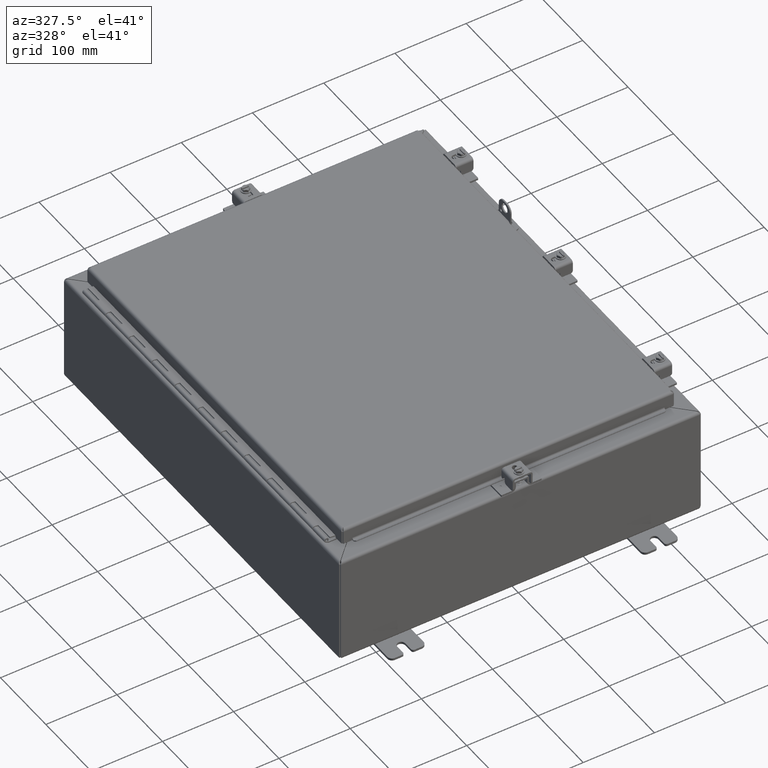
[diagram: clean part render]
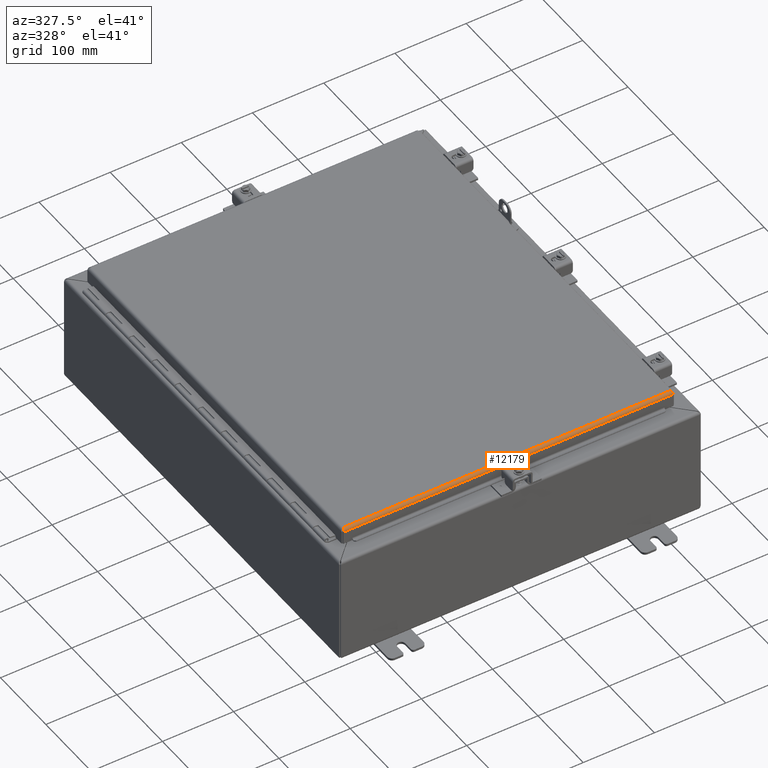
[diagram: same view with one face highlighted and labeled with its STEP entity id]
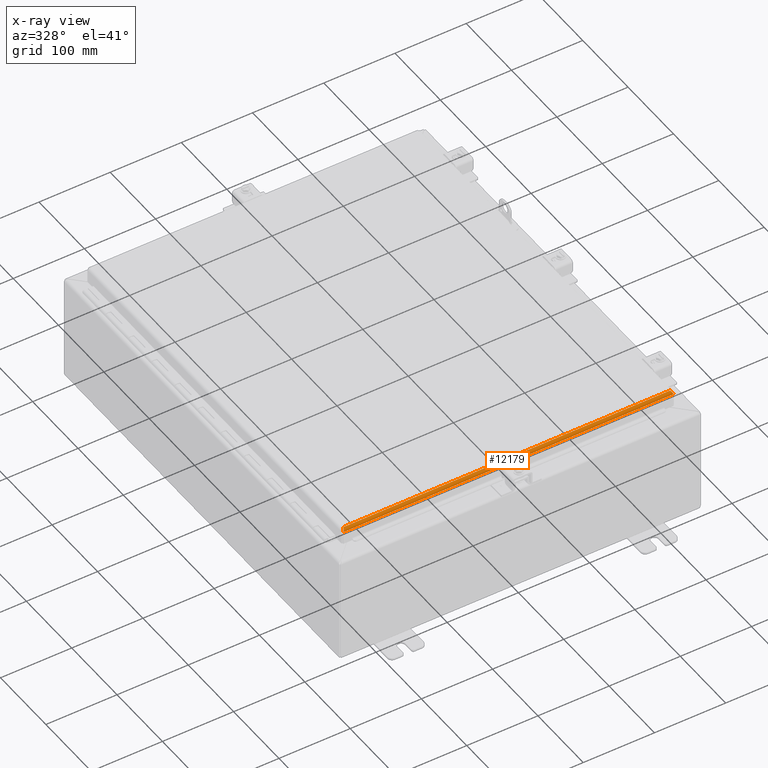
[diagram: x-ray of the same camera — body ghosted, the highlighted face saturated]
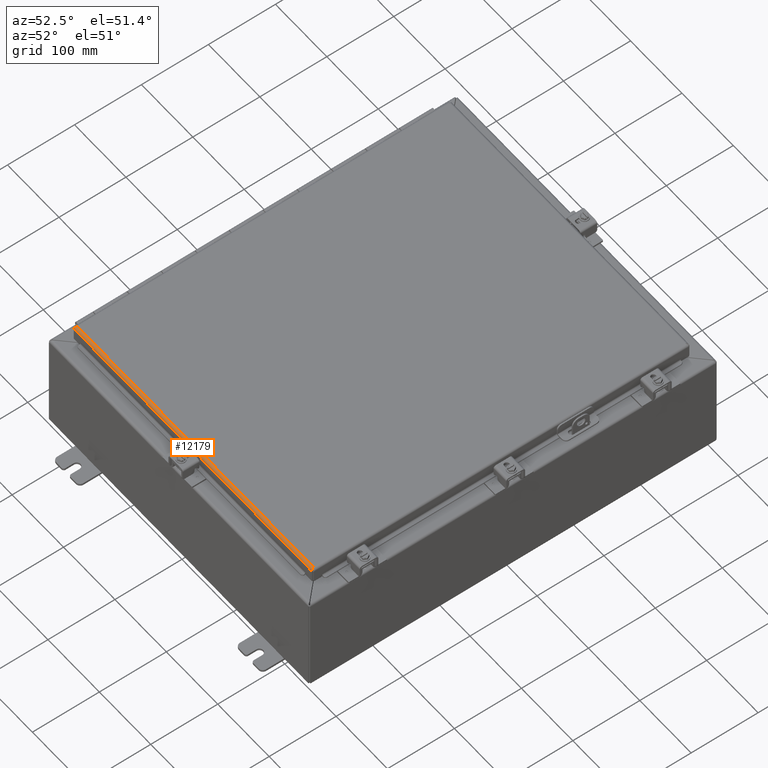
[diagram: same view with one face highlighted and labeled with its STEP entity id]
A machine part, auxiliary view. The second image highlights one B-rep face of the part: STEP entity #12179.
The next image is the same camera in x-ray: the body ghosted, the highlighted face saturated — about 0% of this face is hidden behind the body in this view.
A second angle (auxiliary view) of the same face is appended — the face is thin or edge-on in the first view.
In plain terms, the highlighted cylindrical surface (edge-blend (fillet) strip) has radius 3.8798 mm, axis along (1, 0, -0).
Its self-contained STEP definition (entity closure, byte-faithful):
#497=B_SPLINE_CURVE_WITH_KNOTS('',3,(#20444,#20445,#20446,#20447,#20448,
#20449,#20450),.UNSPECIFIED.,.F.,.F.,(4,3,4),(-0.715532508257306,-0.306656789263516,
0.),.UNSPECIFIED.);
#499=B_SPLINE_CURVE_WITH_KNOTS('',3,(#20483,#20484,#20485,#20486),
 .UNSPECIFIED.,.F.,.F.,(4,4),(-1.,-0.715532508257306),.UNSPECIFIED.);
#500=B_SPLINE_CURVE_WITH_KNOTS('',3,(#20488,#20489,#20490,#20491,#20492,
#20493,#20494),.UNSPECIFIED.,.F.,.F.,(4,3,4),(0.,0.673198425769241,1.5707963267949),
 .UNSPECIFIED.);
#1845=FACE_OUTER_BOUND('',#2553,.T.);
#2553=EDGE_LOOP('',(#9787,#9788,#9789,#9790,#9791));
#3426=LINE('',#20247,#4505);
#3443=LINE('',#20495,#4522);
#4505=VECTOR('',#14832,18.2555857864376);
#4522=VECTOR('',#14871,18.0695);
#5942=VERTEX_POINT('',#20244);
#5943=VERTEX_POINT('',#20246);
#5953=VERTEX_POINT('',#20432);
#5954=VERTEX_POINT('',#20443);
#5955=VERTEX_POINT('',#20487);
#7332=EDGE_CURVE('',#5942,#5943,#3426,.T.);
#7359=EDGE_CURVE('',#5953,#5954,#497,.T.);
#7363=EDGE_CURVE('',#5943,#5953,#499,.T.);
#7364=EDGE_CURVE('',#5955,#5942,#500,.T.);
#7365=EDGE_CURVE('',#5954,#5955,#3443,.T.);
#9787=ORIENTED_EDGE('',*,*,#7363,.F.);
#9788=ORIENTED_EDGE('',*,*,#7332,.F.);
#9789=ORIENTED_EDGE('',*,*,#7364,.F.);
#9790=ORIENTED_EDGE('',*,*,#7365,.F.);
#9791=ORIENTED_EDGE('',*,*,#7359,.F.);
#11742=CYLINDRICAL_SURFACE('',#12942,0.152749999999999);
#12179=ADVANCED_FACE('',(#1845),#11742,.T.);
#12942=AXIS2_PLACEMENT_3D('',#20482,#14869,#14870);
#14832=DIRECTION('',(-1.,3.34026114320378E-18,-1.80050191872058E-32));
#14869=DIRECTION('center_axis',(1.,0.,0.));
#14870=DIRECTION('ref_axis',(0.,0.,-1.));
#14871=DIRECTION('',(1.,0.,0.));
#20244=CARTESIAN_POINT('',(9.12779289321881,11.09375,0.152749999999999));
#20246=CARTESIAN_POINT('',(-9.12779289321881,11.09375,0.152749999999998));
#20247=CARTESIAN_POINT('',(-0.0615301429255595,11.09375,0.152749999999997));
#20432=CARTESIAN_POINT('',(-9.10132521475945,11.0787525289058,0.086743914826432));
#20443=CARTESIAN_POINT('',(-9.03475,10.941,-1.09273919746571E-17));
#20444=CARTESIAN_POINT('Ctrl Pts',(-9.10132521476038,11.078752528906,0.0867439148259642));
#20445=CARTESIAN_POINT('Ctrl Pts',(-9.08864422147298,11.0646214956451,0.0572529131614861));
#20446=CARTESIAN_POINT('Ctrl Pts',(-9.07596322818562,11.0407134322821,0.0325536670259361));
#20447=CARTESIAN_POINT('Ctrl Pts',(-9.06328223489814,11.011771262181,0.017387301972395));
#20448=CARTESIAN_POINT('Ctrl Pts',(-9.05377148993196,10.9900646346039,0.00601252818156504));
#20449=CARTESIAN_POINT('Ctrl Pts',(-9.04426074496572,10.9655263219864,7.93128024633692E-16));
#20450=CARTESIAN_POINT('Ctrl Pts',(-9.03475000000001,10.941,7.75844830200651E-16));
#20482=CARTESIAN_POINT('Origin',(4.517375,10.941,0.15275));
#20483=CARTESIAN_POINT('Ctrl Pts',(-9.12779289321881,11.09375,0.152749999999998));
#20484=CARTESIAN_POINT('Ctrl Pts',(-9.11897033373264,11.09375,0.129998371660368));
#20485=CARTESIAN_POINT('Ctrl Pts',(-9.11014777424649,11.088475396294,0.107223828718222));
#20486=CARTESIAN_POINT('Ctrl Pts',(-9.10132521476032,11.0786783832715,0.0866829552103449));
#20487=CARTESIAN_POINT('',(9.03475,10.941,-2.18547839493141E-17));
#20488=CARTESIAN_POINT('Ctrl Pts',(9.03475,10.941,-6.55643518479423E-17));
#20489=CARTESIAN_POINT('Ctrl Pts',(9.0480418418884,10.9752770198454,-6.86864638407015E-17));
#20490=CARTESIAN_POINT('Ctrl Pts',(9.0613336837768,11.0095971687629,0.0119836657180327));
#20491=CARTESIAN_POINT('Ctrl Pts',(9.0746255256652,11.0362603904734,0.0333573682054045));
#20492=CARTESIAN_POINT('Ctrl Pts',(9.09234798151641,11.0718113527541,0.0618556381885669));
#20493=CARTESIAN_POINT('Ctrl Pts',(9.11007043736761,11.09375,0.107047306872776));
#20494=CARTESIAN_POINT('Ctrl Pts',(9.12779289321881,11.09375,0.152749999999999));
#20495=CARTESIAN_POINT('',(-4.59375,10.941,0.));